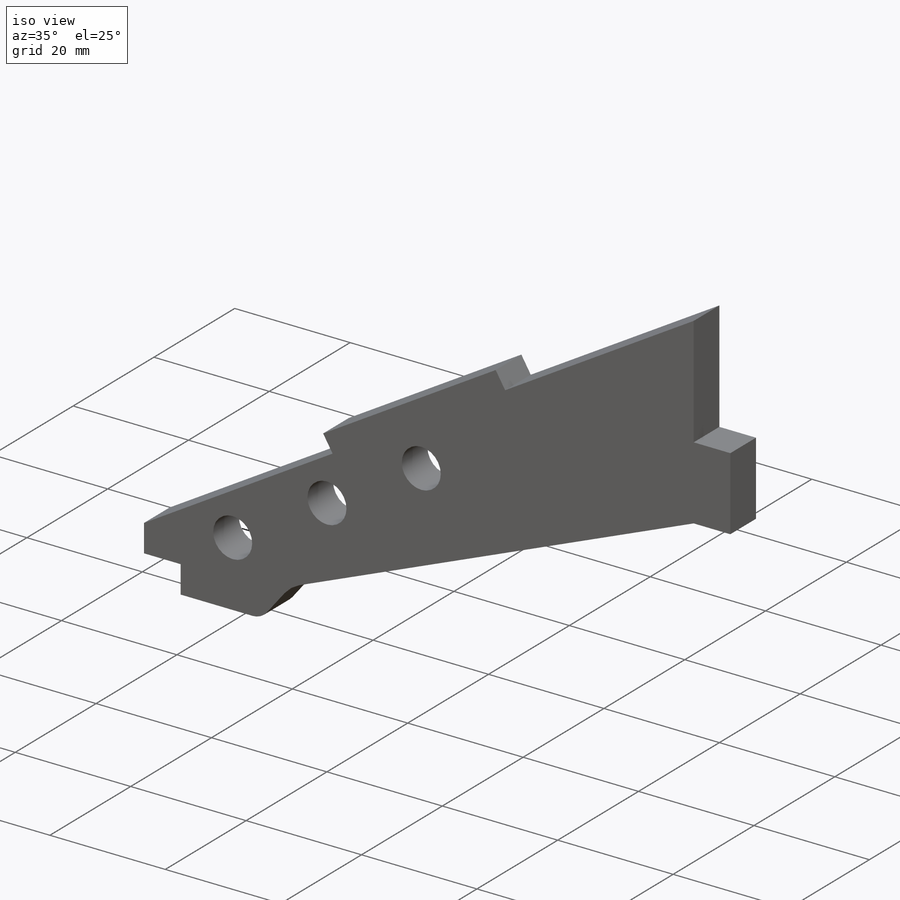
[diagram: iso view]
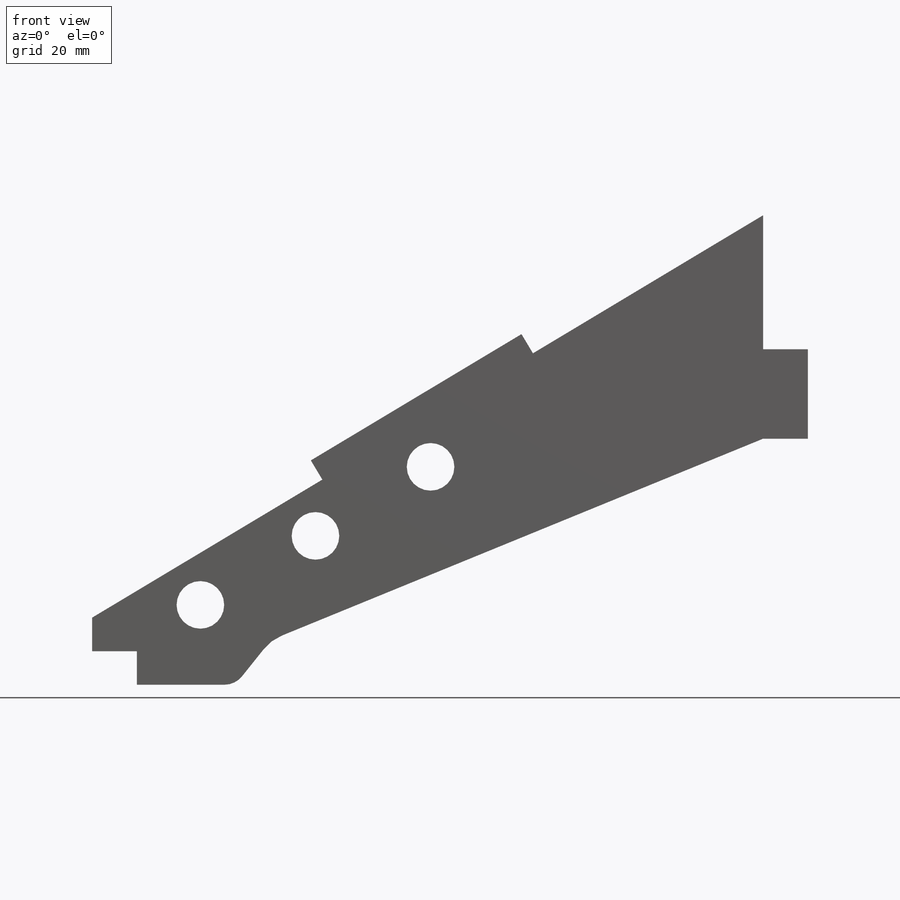
[diagram: front view]
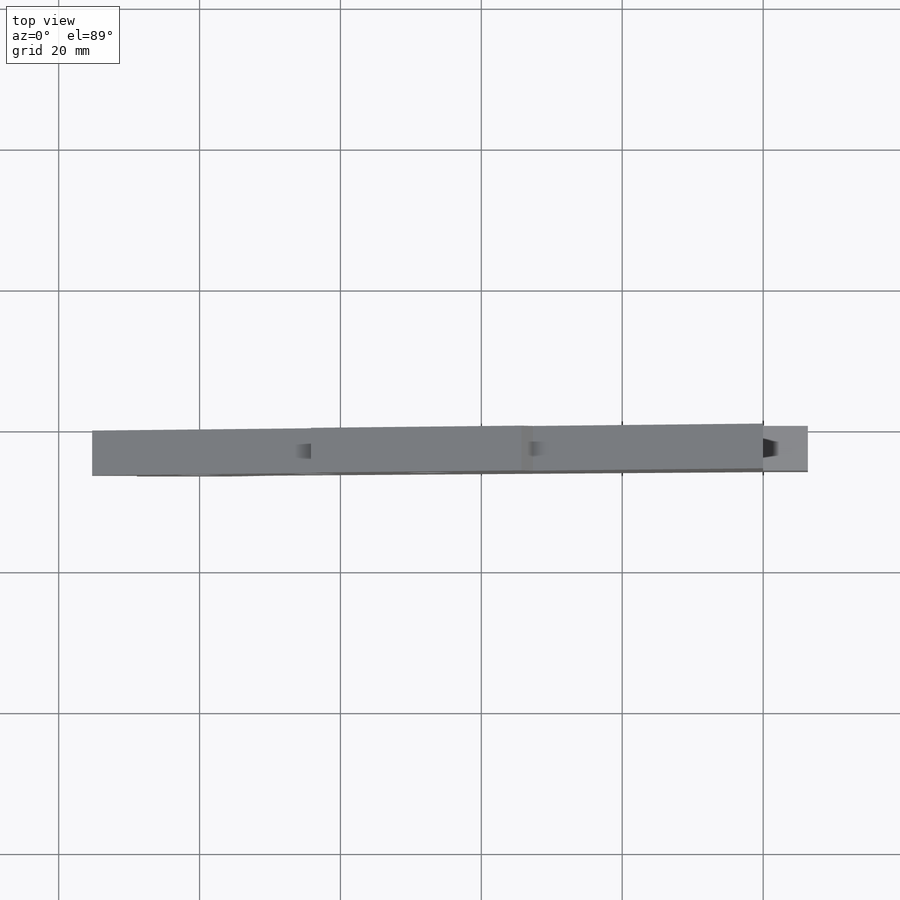
[diagram: top view]
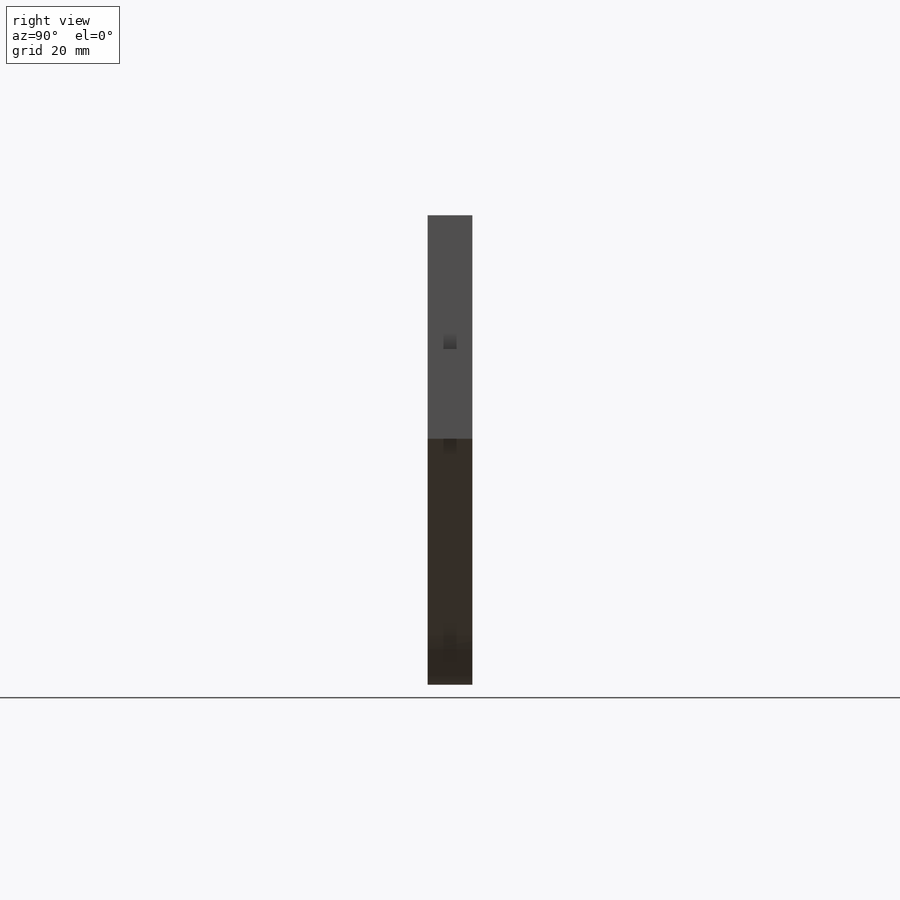
[diagram: right view]
SOLIDWORKS PART (.sldprt)
format: sldprt  version: not decoded by parser v0  size: 261,632 bytes
history: native  units: mm
features: sketch x7, extrude x3, cut_extrude x2, fillet x2, material x1, hole x1 (+13 scaffold rows collapsed)
feature tree (29):
  scaffold x13  (default folders/planes/origin — collapsed)
  material  "Plain Carbon Steel"
  sketch  "Sketch1"  dims[c1.D1=69.85mm c1.D2=95.25mm c1.D3=6.35mm c1.D4=19.05mm c1.D5=6.35mm c2.D1=88.9mm c3.D1=30.95deg]
  extrude  "Boss-Extrude1"  Depth=6.35mm
  sketch  "Sketch3"  dims[D1=15.875mm D2=12.7mm D3=25.4mm]
  cut_extrude  "Cut-Extrude2"  [1 undecoded]
  fillet  "Fillet2"  Radius=6.35mm
  sketch  "Sketch4"  dims[c1.D1=~9.391361mm c1.D2=~11.599145mm c2.D1=~10.036507mm c2.D2=~7.11009mm c3.D1=6.35mm c3.D2=12.7mm c3.D3=~7.10631mm c3.D4=6.35mm c4.D3=4.7625mm]
  extrude  "Boss-Extrude2"  [1 undecoded]
  sketch  "Sketch5"  dims[c1.D1=~8.055825mm c1.D2=~3.576278mm c2.D1=4.7625mm]
  cut_extrude  "Cut-Extrude3"  [1 undecoded]
  fillet  "Fillet3"  Radius=3.175mm
  hole  "1/4 Clearance Hole1"  Diameter=6.7564mm Depth=6.35005mm
  sketch  "Sketch7"  dims[D1=22.225mm D2=12.7mm D3=6.35mm D4=19.05mm D5=19.05mm D6=19.05mm D7=4.7625mm]
  sketch  "Sketch6"  dims[hole-wizard template sketch: 60 standard entries collapsed; hole parameters kept: c18.Thru Hole Depth=~6.35005mm]
  sketch  "Sketch8"  dims[c1.D1=3.175mm c1.D2=38.1mm c1.D3=38.1mm c2.D2=38.1mm]
  extrude  "Boss-Extrude3"  [1 undecoded]
decode coverage: 11 of 15 modeling features carry decoded parameters
note: ~ marks probable driven/reference dimensions
note: 4 parameter values undecoded
summary: no parameter record found for 4 features
note: suppression state not decoded; provenance and decode notes live in map.json
